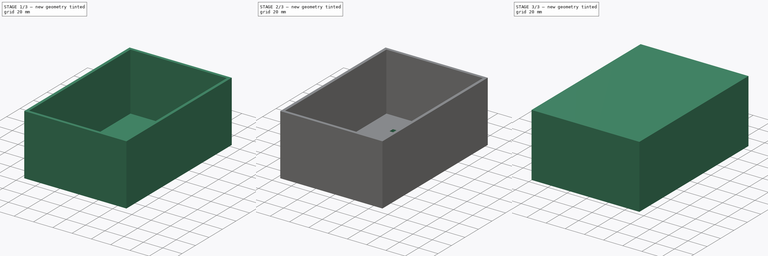
[diagram: build sequence overview — one tinted view per stage of 3, left to right]
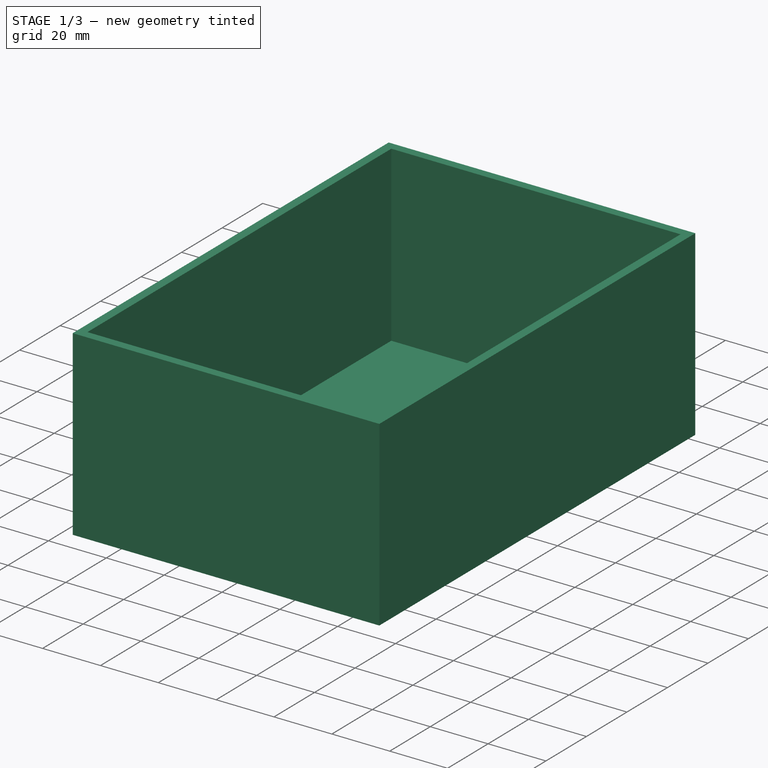
[diagram: stage 1 of 3 — iso view after this stage's code; geometry added in this stage tinted green]
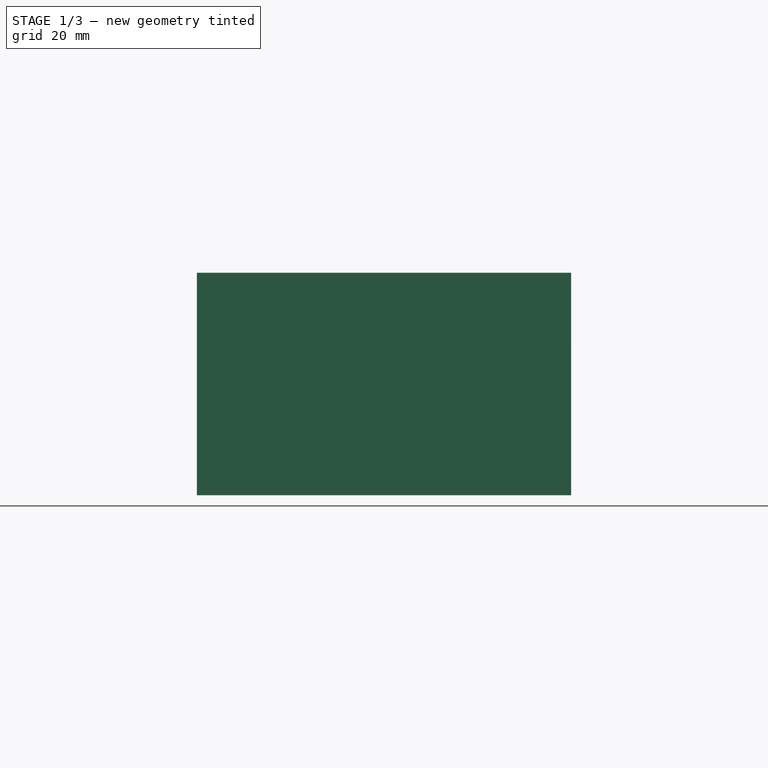
[diagram: stage 1 of 3 — front view after this stage's code; geometry added in this stage tinted green]
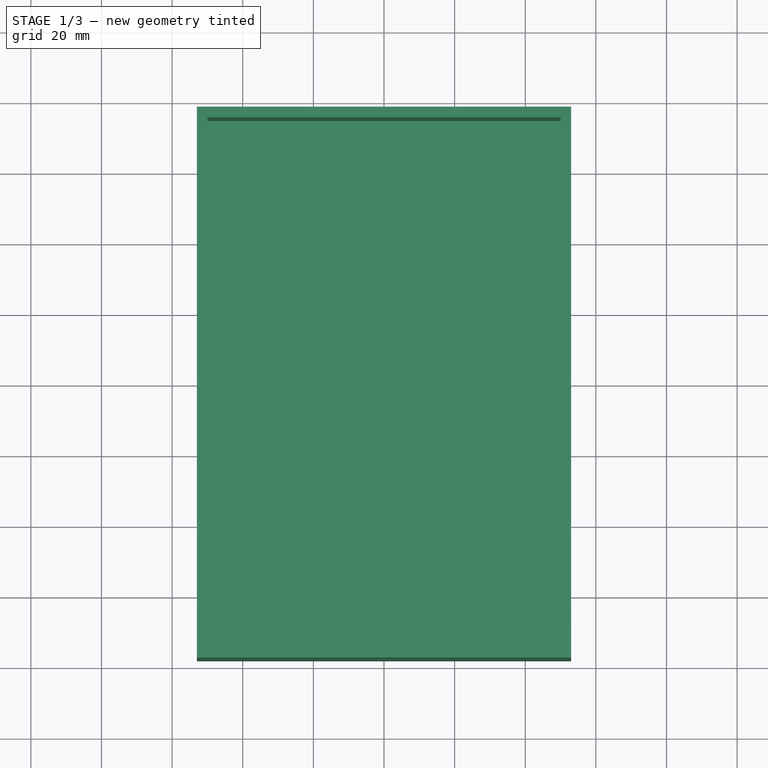
[diagram: stage 1 of 3 — top view after this stage's code; geometry added in this stage tinted green]
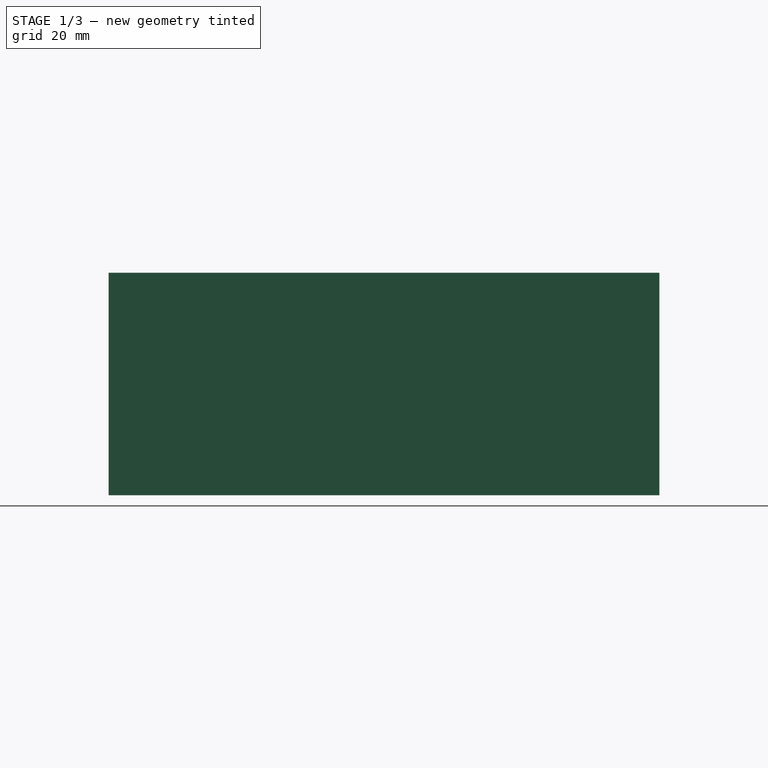
[diagram: stage 1 of 3 — right view after this stage's code; geometry added in this stage tinted green]
FCSTD DOCUMENT  (FreeCAD 1.0R39109 (Git))
Label: parametric_card_box
License: All rights reserved
LicenseURL: http://en.wikipedia.org/wiki/All_rights_reserved
objects: Sketcher::SketchObject×5, PartDesign::Pocket×3, PartDesign::Pad×2, PartDesign::Body×2, PartDesign::LinearPattern×2, Spreadsheet::Sheet×1, PartDesign::Plane×1, PartDesign::MultiTransform×1
note: 34 computed .brp shape members not serialized (recipe doc carries the construction recipe); baked Part::Feature solids carry a one-line shape summary decoded from their .brp

FEATURE [Spreadsheet::Sheet] Spreadsheet
  cells = A1='Content width; B1='Content Depth; C1='Content Height; A2(width)=100; B2(depth)=150; C2(height)=60; A3='Wall Thickness; B3='Cover Spacing; A4(wallThickness)=3; B4(spacing)=0.5
FEATURE [Sketcher::SketchObject] Sketch
  ArcFitTolerance = 0
  AttachmentSupport = -> [XY_Plane]
  FullyConstrained = true
  MakeInternals = false
  MapMode = 5
  expr: Constraints[10] = <<Spreadsheet>>.width + <<Spreadsheet>>.wallThickness * 2
  expr: Constraints[9] = <<Spreadsheet>>.depth + <<Spreadsheet>>.wallThickness * 2
  sketch-geometry (4):
    g0: LineSegment StartX=-53 StartY=78 StartZ=0 EndX=53 EndY=78 EndZ=0
    g1: LineSegment StartX=53 StartY=78 StartZ=0 EndX=53 EndY=-78 EndZ=0
    g2: LineSegment StartX=53 StartY=-78 StartZ=0 EndX=-53 EndY=-78 EndZ=0
    g3: LineSegment StartX=-53 StartY=-78 StartZ=0 EndX=-53 EndY=78 EndZ=0
  constraints (11):
    c: Coincident(g0,g1)
    c: Coincident(g1,g2)
    c: Coincident(g2,g3)
    c: Coincident(g3,g0)
    c: Horizontal(g0)
    c: Horizontal(g2)
    c: Vertical(g1)
    c: Vertical(g3)
    c: Symmetric(g0,g2,g-1)
    c: Distance(g1) = 156
    c: Distance(g2) = 106
FEATURE [PartDesign::Pad] Pad  label="content_pad"
  Direction = (0,0,1)
  Length = 63
  Length2 = 100
  Profile = -> Sketch
  Suppressed = false
  Type = 0
  expr: Length = <<Spreadsheet>>.height + <<Spreadsheet>>.wallThickness
FEATURE [PartDesign::Plane] DatumPlane
  AttachmentOffset = pos=(0,0,63) rot=(0,0,1;0rad)
  AttachmentSupport = -> [XY_Plane]
  Length = 131.718
  MapMode = 5
  Placement = pos=(0,0,63) rot=(0,0,1;0rad)
  ResizeMode = 0
  Width = 181.718
  expr: .AttachmentOffset.Base.z = <<Spreadsheet>>.height + <<Spreadsheet>>.wallThickness
FEATURE [Sketcher::SketchObject] Sketch001
  ArcFitTolerance = 0
  AttachmentSupport = -> [DatumPlane]
  FullyConstrained = true
  MakeInternals = false
  MapMode = 5
  Placement = pos=(0,0,63) rot=(0,0,1;0rad)
  expr: Constraints[10] = <<Spreadsheet>>.width
  expr: Constraints[9] = <<Spreadsheet>>.depth
  sketch-geometry (4):
    g0: LineSegment StartX=-50 StartY=75 StartZ=0 EndX=50 EndY=75 EndZ=0
    g1: LineSegment StartX=50 StartY=75 StartZ=0 EndX=50 EndY=-75 EndZ=0
    g2: LineSegment StartX=50 StartY=-75 StartZ=0 EndX=-50 EndY=-75 EndZ=0
    g3: LineSegment StartX=-50 StartY=-75 StartZ=0 EndX=-50 EndY=75 EndZ=0
  constraints (11):
    c: Coincident(g0,g1)
    c: Coincident(g1,g2)
    c: Coincident(g2,g3)
    c: Coincident(g3,g0)
    c: Horizontal(g0)
    c: Horizontal(g2)
    c: Vertical(g1)
    c: Vertical(g3)
    c: Symmetric(g0,g2,g-1)
    c: Distance(g1) = 150
    c: Distance(g2) = 100
FEATURE [PartDesign::Pocket] Pocket  label="content_pocket"
  BaseFeature = -> Pad
  Direction = (0,0,-1)
  Length = 60
  Length2 = 100
  Profile = -> Sketch001
  Suppressed = false
  Type = 0
  expr: Length = <<Spreadsheet>>.height
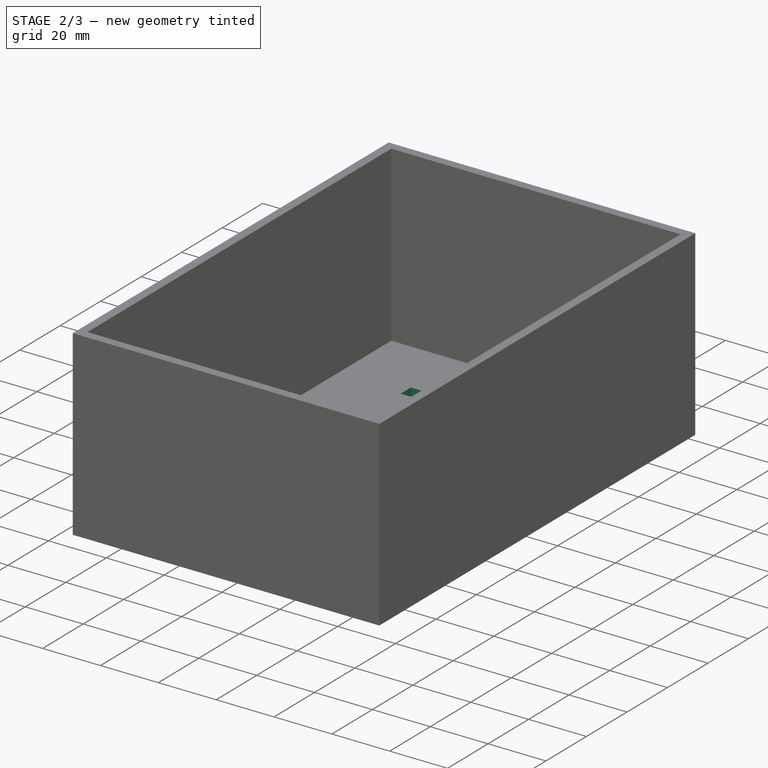
[diagram: stage 2 of 3 — iso view after this stage's code; geometry added in this stage tinted green]
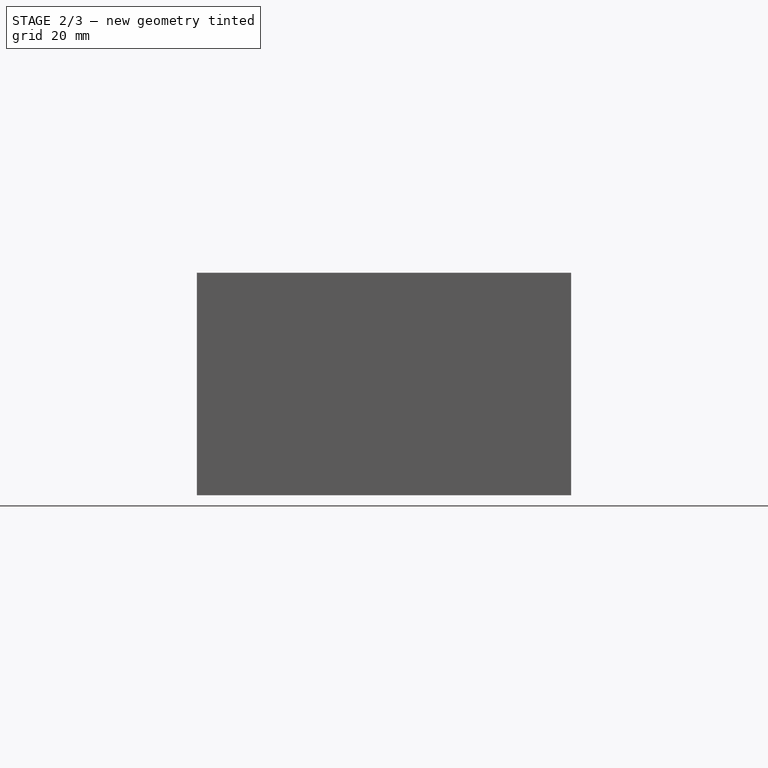
[diagram: stage 2 of 3 — front view after this stage's code; geometry added in this stage tinted green]
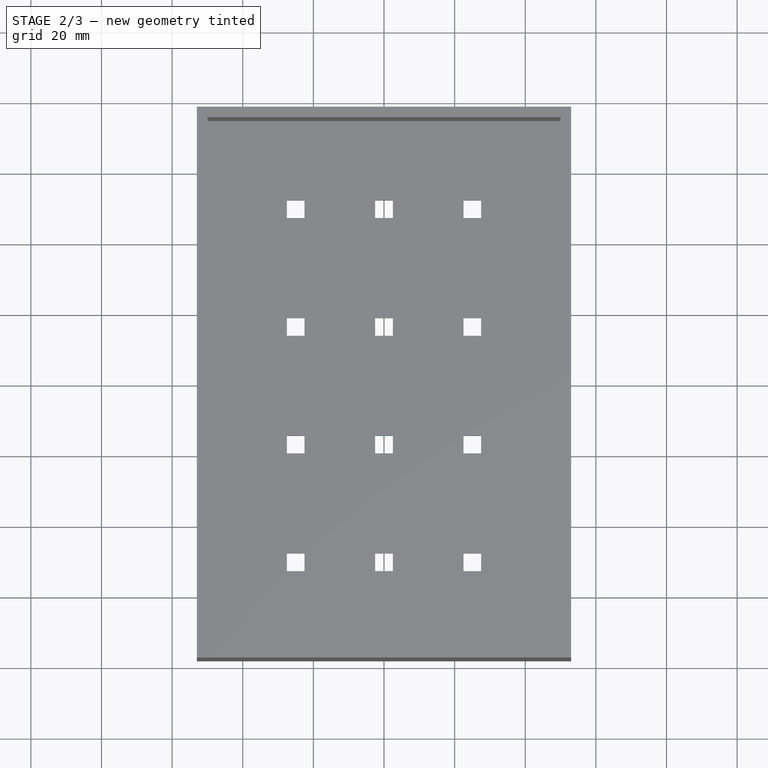
[diagram: stage 2 of 3 — top view after this stage's code; geometry added in this stage tinted green]
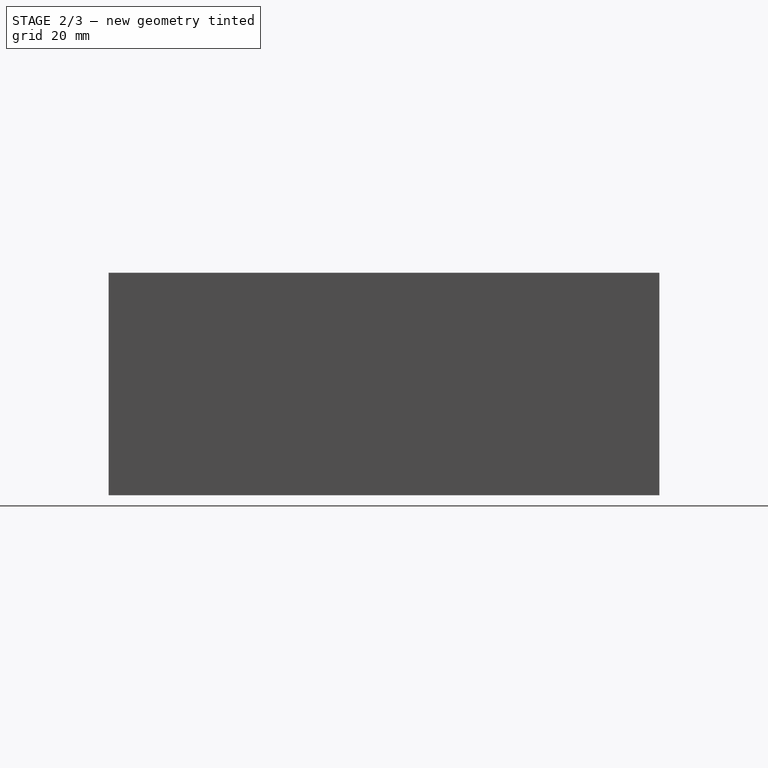
[diagram: stage 2 of 3 — right view after this stage's code; geometry added in this stage tinted green]
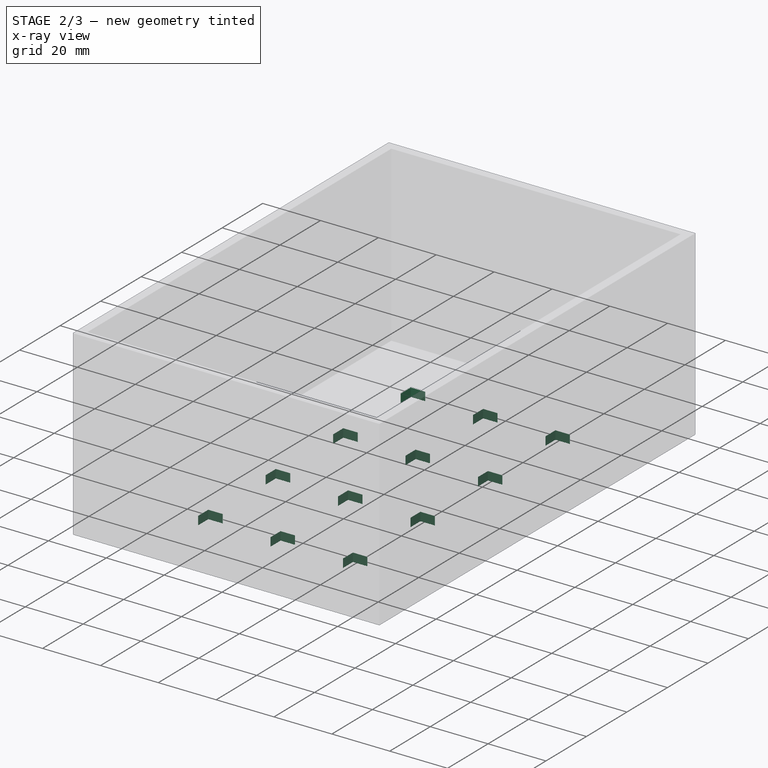
[diagram: stage 2 of 3 — x-ray composite at the iso view; earlier geometry ghosted, this stage's added geometry solid]
FEATURE [PartDesign::Body] Body001  label="cover_body"
  AllowCompound = false
  Group = -> [Sketch002,Pad001,Sketch003,Pocket001]
  Origin = -> Origin001
  Tip = -> Pocket001
FEATURE [Sketcher::SketchObject] Sketch004
  ArcFitTolerance = 1e-06
  AttachmentSupport = -> [Pocket]
  FullyConstrained = true
  MakeInternals = false
  MapMode = 5
  Placement = pos=(0,0,3) rot=(0,0,1;0rad)
  sketch-geometry (8):
    g0: LineSegment [constr] StartX=0 StartY=0 StartZ=0 EndX=0 EndY=50 EndZ=0
    g1: LineSegment [constr] StartX=0 StartY=50 StartZ=0 EndX=-25 EndY=50 EndZ=0
    g2: LineSegment [constr] StartX=-25 StartY=50 StartZ=0 EndX=-25 EndY=0 EndZ=0
    g3: LineSegment [constr] StartX=-25 StartY=0 StartZ=0 EndX=0 EndY=0 EndZ=0
    g4: LineSegment StartX=-27.5 StartY=52.5 StartZ=0 EndX=-27.5 EndY=47.5 EndZ=0
    g5: LineSegment StartX=-27.5 StartY=47.5 StartZ=0 EndX=-22.5 EndY=47.5 EndZ=0
    g6: LineSegment StartX=-22.5 StartY=47.5 StartZ=0 EndX=-22.5 EndY=52.5 EndZ=0
    g7: LineSegment StartX=-22.5 StartY=52.5 StartZ=0 EndX=-27.5 EndY=52.5 EndZ=0
  constraints (22):
    c: Coincident(g0,g1)
    c: Coincident(g2,g3)
    c: Coincident(g3,g0)
    c: Vertical(g0)
    c: Vertical(g2)
    c: Horizontal(g1)
    c: Horizontal(g3)
    c: Coincident(g0,g-1)
    c: Coincident(g2,g1)
    c: Coincident(g4,g5)
    c: Coincident(g5,g6)
    c: Coincident(g6,g7)
    c: Coincident(g7,g4)
    c: Vertical(g4)
    c: Vertical(g6)
    c: Horizontal(g5)
    c: Horizontal(g7)
    c: Symmetric(g6,g4,g1)
    c: Equal(g7,g6)
    c: DistanceX(g3,g3) = 25
    c: DistanceY(g0,g0) = 50
    c: DistanceX(g5,g5) = 5
FEATURE [PartDesign::Pocket] Pocket002
  BaseFeature = -> Pocket
  Direction = (0,0,-1)
  Length = 5
  Length2 = 5
  Profile = -> Sketch004
  ReferenceAxis = -> Sketch004 [N_Axis]
  Refine = true
  Suppressed = false
  Type = 1
FEATURE [PartDesign::LinearPattern] LinearPattern
  Direction = -> X_Axis
  Length = 50
  Mode = 0
  Occurrences = 3
  Offset = 25
  Refine = true
  Suppressed = false
  TransformMode = 0
FEATURE [PartDesign::LinearPattern] LinearPattern001
  Direction = -> Y_Axis
  Length = 100
  Mode = 0
  Occurrences = 4
  Offset = 33.3333
  Refine = true
  Reversed = true
  Suppressed = false
  TransformMode = 0
FEATURE [PartDesign::MultiTransform] MultiTransform
  BaseFeature = -> Pocket002
  Originals = -> [Pocket002]
  Refine = true
  Suppressed = false
  TransformMode = 0
  Transformations = -> [LinearPattern,LinearPattern001]
FEATURE [PartDesign::Body] Body  label="bottom_body"
  AllowCompound = false
  Group = -> [Sketch,Pad,DatumPlane,Sketch001,Pocket,Sketch004,Pocket002,MultiTransform,LinearPattern,LinearPattern001]
  Origin = -> Origin
  Tip = -> MultiTransform
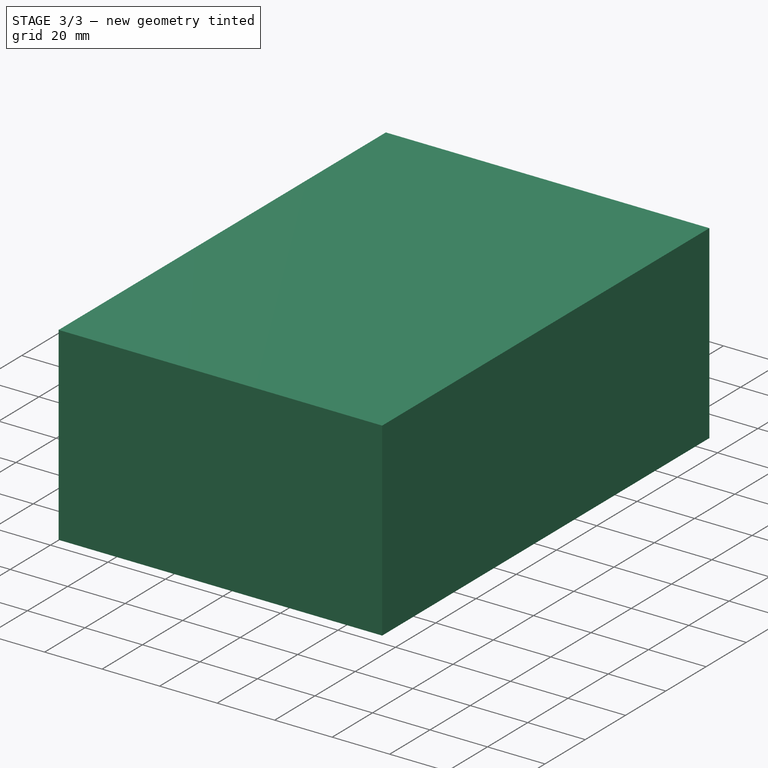
[diagram: stage 3 of 3 — iso view after this stage's code; geometry added in this stage tinted green]
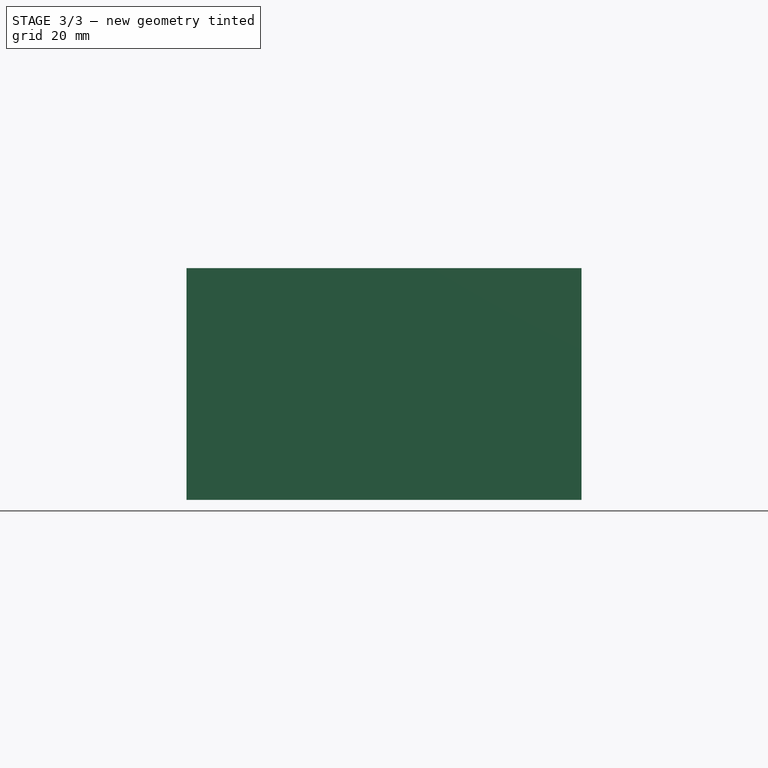
[diagram: stage 3 of 3 — front view after this stage's code; geometry added in this stage tinted green]
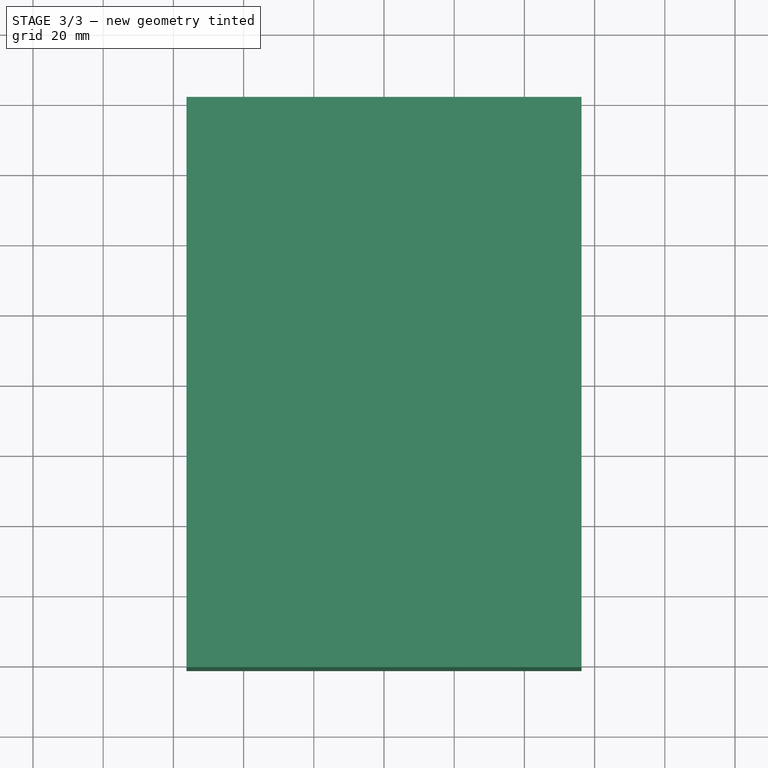
[diagram: stage 3 of 3 — top view after this stage's code; geometry added in this stage tinted green]
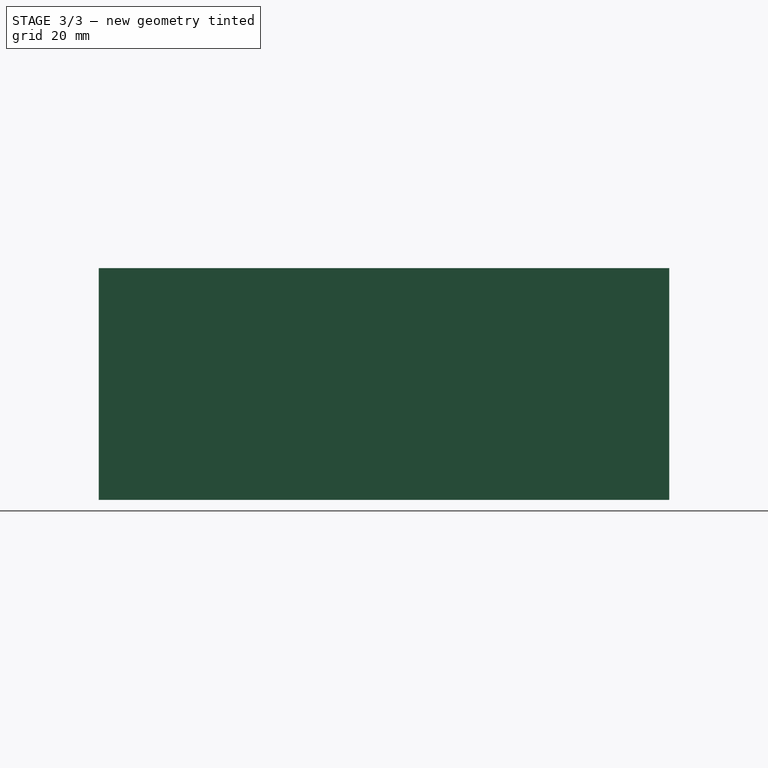
[diagram: stage 3 of 3 — right view after this stage's code; geometry added in this stage tinted green]
FEATURE [Sketcher::SketchObject] Sketch002
  ArcFitTolerance = 0
  AttachmentSupport = -> [XY_Plane001]
  FullyConstrained = true
  MakeInternals = false
  MapMode = 5
  expr: Constraints[10] = <<Spreadsheet>>.width + <<Spreadsheet>>.wallThickness * 4 + <<Spreadsheet>>.spacing
  expr: Constraints[9] = <<Spreadsheet>>.depth + <<Spreadsheet>>.wallThickness * 4 + <<Spreadsheet>>.spacing
  sketch-geometry (4):
    g0: LineSegment StartX=-56.25 StartY=81.25 StartZ=0 EndX=56.25 EndY=81.25 EndZ=0
    g1: LineSegment StartX=56.25 StartY=81.25 StartZ=0 EndX=56.25 EndY=-81.25 EndZ=0
    g2: LineSegment StartX=56.25 StartY=-81.25 StartZ=0 EndX=-56.25 EndY=-81.25 EndZ=0
    g3: LineSegment StartX=-56.25 StartY=-81.25 StartZ=0 EndX=-56.25 EndY=81.25 EndZ=0
  constraints (11):
    c: Coincident(g0,g1)
    c: Coincident(g1,g2)
    c: Coincident(g2,g3)
    c: Coincident(g3,g0)
    c: Horizontal(g0)
    c: Horizontal(g2)
    c: Vertical(g1)
    c: Vertical(g3)
    c: Symmetric(g0,g2,g-1)
    c: Distance(g1) = 162.5
    c: Distance(g2) = 112.5
FEATURE [PartDesign::Pad] Pad001  label="cover_pad"
  Direction = (0,0,1)
  Length = 66
  Length2 = 100
  Profile = -> Sketch002
  Suppressed = false
  Type = 0
  expr: Length = <<Spreadsheet>>.height + <<Spreadsheet>>.wallThickness * 2
FEATURE [Sketcher::SketchObject] Sketch003
  ArcFitTolerance = 0
  AttachmentSupport = -> [XY_Plane001]
  FullyConstrained = true
  MakeInternals = false
  MapMode = 5
  expr: Constraints[10] = <<Spreadsheet>>.width + <<Spreadsheet>>.wallThickness * 2 + <<Spreadsheet>>.spacing
  expr: Constraints[9] = <<Spreadsheet>>.depth + <<Spreadsheet>>.wallThickness * 2 + <<Spreadsheet>>.spacing
  sketch-geometry (4):
    g0: LineSegment StartX=-53.25 StartY=78.25 StartZ=0 EndX=53.25 EndY=78.25 EndZ=0
    g1: LineSegment StartX=53.25 StartY=78.25 StartZ=0 EndX=53.25 EndY=-78.25 EndZ=0
    g2: LineSegment StartX=53.25 StartY=-78.25 StartZ=0 EndX=-53.25 EndY=-78.25 EndZ=0
    g3: LineSegment StartX=-53.25 StartY=-78.25 StartZ=0 EndX=-53.25 EndY=78.25 EndZ=0
  constraints (11):
    c: Coincident(g0,g1)
    c: Coincident(g1,g2)
    c: Coincident(g2,g3)
    c: Coincident(g3,g0)
    c: Horizontal(g0)
    c: Horizontal(g2)
    c: Vertical(g1)
    c: Vertical(g3)
    c: Symmetric(g0,g2,g-1)
    c: Distance(g1) = 156.5
    c: Distance(g2) = 106.5
FEATURE [PartDesign::Pocket] Pocket001  label="cover_pocket"
  BaseFeature = -> Pad001
  Direction = (0,0,-1)
  Length = 63
  Length2 = 100
  Profile = -> Sketch003
  Reversed = true
  Suppressed = false
  Type = 0
  expr: Length = <<Spreadsheet>>.height + <<Spreadsheet>>.wallThickness
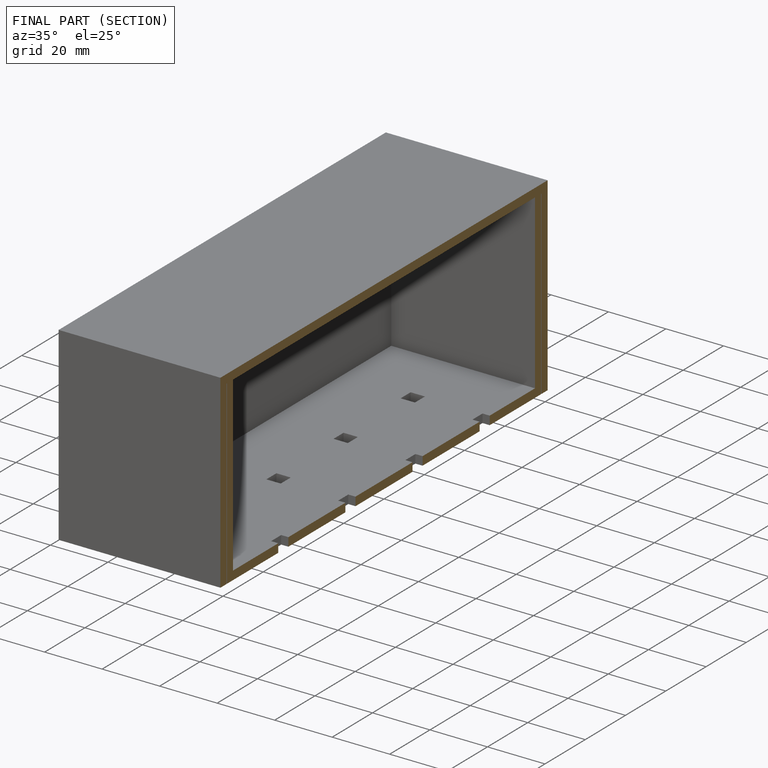
[diagram: finished part — half-section view (interior)]
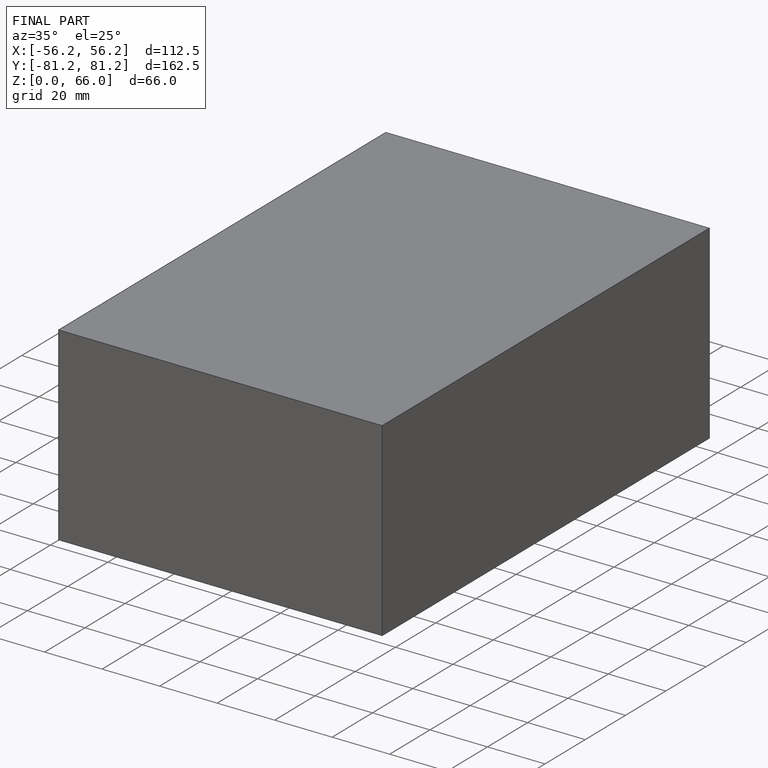
[diagram: finished part — iso view with bounding-box wireframe]
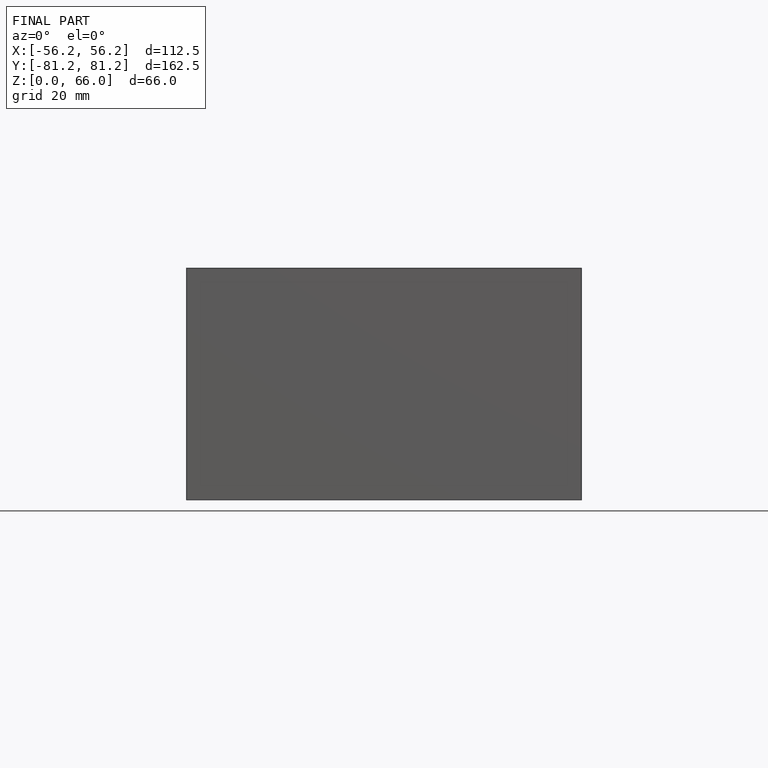
[diagram: finished part — front view with bounding-box wireframe]
